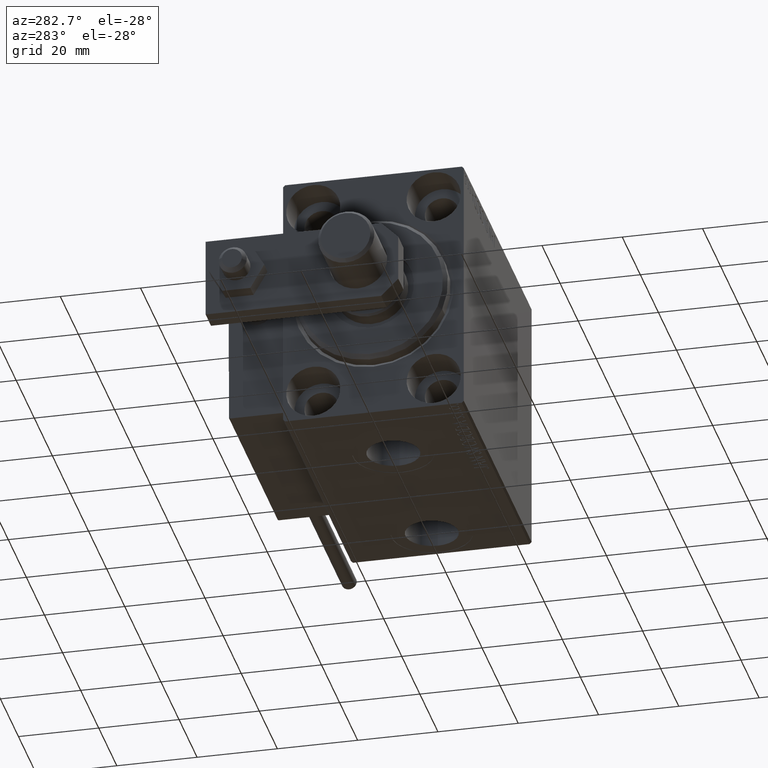
[diagram: clean part render]
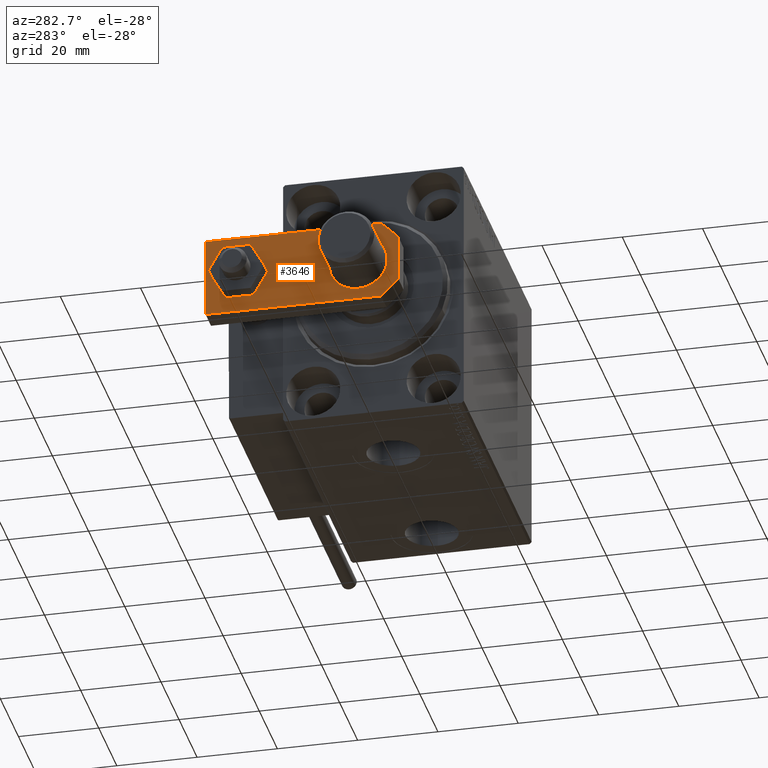
[diagram: same view with one face highlighted and labeled with its STEP entity id]
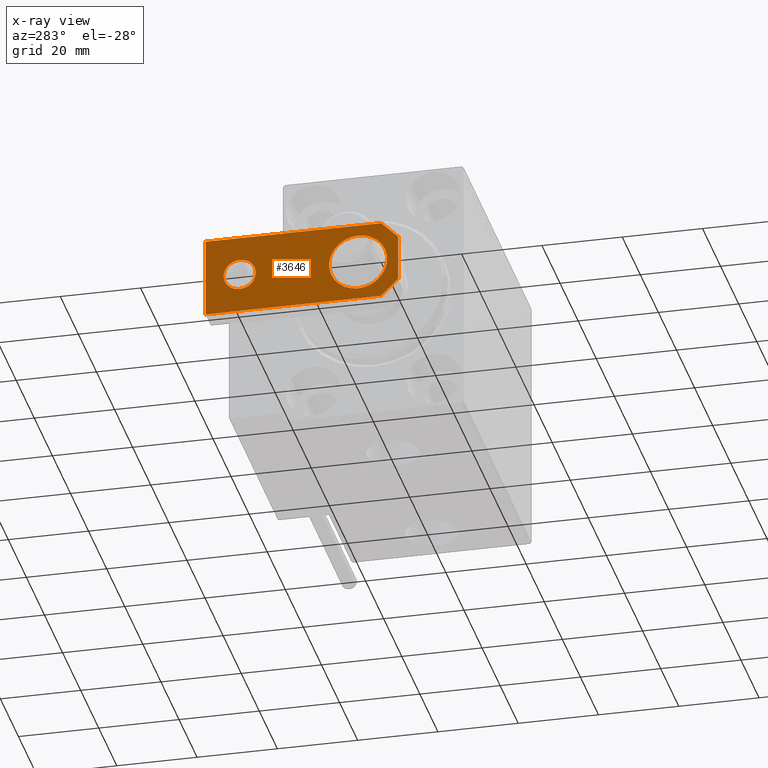
[diagram: x-ray of the same camera — body ghosted, the highlighted face saturated]
A machine part, auxiliary view. The second image highlights one B-rep face of the part: STEP entity #3646.
The next image is the same camera in x-ray: the body ghosted, the highlighted face saturated — about 0% of this face is hidden behind the body in this view.
In plain terms, the highlighted planar face has unit normal (-1, 0, 0).
Its self-contained STEP definition (entity closure, byte-faithful):
#160 = EDGE_LOOP ( 'NONE', ( #23156, #47067 ) ) ;
#1130 = VERTEX_POINT ( 'NONE', #17939 ) ;
#2448 = EDGE_LOOP ( 'NONE', ( #15724, #30619 ) ) ;
#2869 = VECTOR ( 'NONE', #26515, 1000.000000000000000 ) ;
#3646 = ADVANCED_FACE ( 'NONE', ( #39541, #13744, #12578 ), #43896, .T. ) ;
#3659 = LINE ( 'NONE', #42910, #3932 ) ;
#3932 = VECTOR ( 'NONE', #43437, 1000.000000000000114 ) ;
#4196 = AXIS2_PLACEMENT_3D ( 'NONE', #43686, #17467, #8751 ) ;
#4628 = LINE ( 'NONE', #8464, #22173 ) ;
#4676 = LINE ( 'NONE', #20330, #50796 ) ;
#5228 = VERTEX_POINT ( 'NONE', #34195 ) ;
#5476 = EDGE_CURVE ( 'NONE', #1130, #5228, #47669, .T. ) ;
#5525 = VECTOR ( 'NONE', #27244, 1000.000000000000000 ) ;
#5540 = VERTEX_POINT ( 'NONE', #13855 ) ;
#5913 = ORIENTED_EDGE ( 'NONE', *, *, #34539, .T. ) ;
#6648 = CIRCLE ( 'NONE', #23080, 7.250000000000000000 ) ;
#6995 = CARTESIAN_POINT ( 'NONE',  ( 4.000000000000000888, 39.50000000000000000, 6.000000000000000000 ) ) ;
#7072 = EDGE_CURVE ( 'NONE', #5228, #1130, #6648, .T. ) ;
#7566 = VERTEX_POINT ( 'NONE', #34101 ) ;
#7722 = LINE ( 'NONE', #19559, #5525 ) ;
#7761 = CARTESIAN_POINT ( 'NONE',  ( 10.00000000000000533, 0.000000000000000000, 6.000000000000000000 ) ) ;
#8359 = CIRCLE ( 'NONE', #14926, 4.000000000000000888 ) ;
#8458 = DIRECTION ( 'NONE',  ( -0.000000000000000000, 0.000000000000000000, 1.000000000000000000 ) ) ;
#8464 = CARTESIAN_POINT ( 'NONE',  ( -10.00000000000000000, 48.00000000000000000, 6.000000000000000000 ) ) ;
#8751 = DIRECTION ( 'NONE',  ( 1.000000000000000000, 0.000000000000000000, 0.000000000000000000 ) ) ;
#9768 = EDGE_CURVE ( 'NONE', #42803, #28152, #4676, .T. ) ;
#10203 = DIRECTION ( 'NONE',  ( 1.000000000000000000, 0.000000000000000000, 0.000000000000000000 ) ) ;
#10350 = CIRCLE ( 'NONE', #39059, 4.000000000000000888 ) ;
#12578 = FACE_BOUND ( 'NONE', #2448, .T. ) ;
#12585 = DIRECTION ( 'NONE',  ( -1.084202172485504434E-16, -1.000000000000000000, 0.000000000000000000 ) ) ;
#13744 = FACE_OUTER_BOUND ( 'NONE', #42839, .T. ) ;
#13806 = DIRECTION ( 'NONE',  ( 0.000000000000000000, 0.000000000000000000, 1.000000000000000000 ) ) ;
#13855 = CARTESIAN_POINT ( 'NONE',  ( -10.00000000000000000, 48.00000000000000000, 6.000000000000000000 ) ) ;
#13884 = EDGE_CURVE ( 'NONE', #5540, #42803, #4628, .T. ) ;
#14926 = AXIS2_PLACEMENT_3D ( 'NONE', #41269, #13806, #10203 ) ;
#15209 = DIRECTION ( 'NONE',  ( 0.7071067811865464625, -0.7071067811865486830, 0.000000000000000000 ) ) ;
#15604 = ORIENTED_EDGE ( 'NONE', *, *, #13884, .T. ) ;
#15724 = ORIENTED_EDGE ( 'NONE', *, *, #7072, .F. ) ;
#16818 = CARTESIAN_POINT ( 'NONE',  ( -4.000000000000000888, 39.50000000000000000, 6.000000000000000000 ) ) ;
#17467 = DIRECTION ( 'NONE',  ( 0.000000000000000000, 0.000000000000000000, 1.000000000000000000 ) ) ;
#17892 = EDGE_CURVE ( 'NONE', #43108, #27515, #8359, .T. ) ;
#17939 = CARTESIAN_POINT ( 'NONE',  ( 7.250000000000000000, 10.00000000000000355, 6.000000000000000000 ) ) ;
#19559 = CARTESIAN_POINT ( 'NONE',  ( 10.00000000000000178, 48.00000000000000000, 6.000000000000000000 ) ) ;
#20330 = CARTESIAN_POINT ( 'NONE',  ( -2.880000000000006999, -2.879999999999998561, 6.000000000000000000 ) ) ;
#22120 = AXIS2_PLACEMENT_3D ( 'NONE', #43641, #8458, #29155 ) ;
#22173 = VECTOR ( 'NONE', #12585, 1000.000000000000000 ) ;
#23080 = AXIS2_PLACEMENT_3D ( 'NONE', #47578, #31137, #28052 ) ;
#23156 = ORIENTED_EDGE ( 'NONE', *, *, #17892, .F. ) ;
#23356 = ORIENTED_EDGE ( 'NONE', *, *, #41699, .T. ) ;
#23416 = VERTEX_POINT ( 'NONE', #35328 ) ;
#25601 = ORIENTED_EDGE ( 'NONE', *, *, #27463, .T. ) ;
#26515 = DIRECTION ( 'NONE',  ( -7.228014483236695816E-17, 1.000000000000000000, 0.000000000000000000 ) ) ;
#26593 = CARTESIAN_POINT ( 'NONE',  ( -1.432611055310774642E-16, 39.50000000000000000, 6.000000000000000000 ) ) ;
#27244 = DIRECTION ( 'NONE',  ( -1.000000000000000000, 0.000000000000000000, 0.000000000000000000 ) ) ;
#27463 = EDGE_CURVE ( 'NONE', #37550, #23416, #38071, .T. ) ;
#27515 = VERTEX_POINT ( 'NONE', #6995 ) ;
#27622 = ORIENTED_EDGE ( 'NONE', *, *, #9768, .T. ) ;
#28052 = DIRECTION ( 'NONE',  ( 1.000000000000000000, 0.000000000000000000, 0.000000000000000000 ) ) ;
#28152 = VERTEX_POINT ( 'NONE', #34372 ) ;
#29155 = DIRECTION ( 'NONE',  ( 1.000000000000000000, 0.000000000000000000, 0.000000000000000000 ) ) ;
#30619 = ORIENTED_EDGE ( 'NONE', *, *, #5476, .F. ) ;
#31137 = DIRECTION ( 'NONE',  ( 0.000000000000000000, 0.000000000000000000, 1.000000000000000000 ) ) ;
#31393 = ORIENTED_EDGE ( 'NONE', *, *, #46894, .T. ) ;
#31408 = EDGE_CURVE ( 'NONE', #27515, #43108, #10350, .T. ) ;
#33023 = LINE ( 'NONE', #44091, #43888 ) ;
#34101 = CARTESIAN_POINT ( 'NONE',  ( 5.759999999999998010, 0.000000000000000000, 6.000000000000000000 ) ) ;
#34195 = CARTESIAN_POINT ( 'NONE',  ( -7.250000000000000000, 10.00000000000000178, 6.000000000000000000 ) ) ;
#34372 = CARTESIAN_POINT ( 'NONE',  ( -5.759999999999997122, 0.000000000000000000, 6.000000000000000000 ) ) ;
#34539 = EDGE_CURVE ( 'NONE', #7566, #37550, #3659, .T. ) ;
#35328 = CARTESIAN_POINT ( 'NONE',  ( 10.00000000000000178, 48.00000000000000000, 6.000000000000000000 ) ) ;
#37129 = DIRECTION ( 'NONE',  ( 1.000000000000000000, 0.000000000000000000, 0.000000000000000000 ) ) ;
#37550 = VERTEX_POINT ( 'NONE', #47414 ) ;
#38071 = LINE ( 'NONE', #7761, #2869 ) ;
#38391 = DIRECTION ( 'NONE',  ( 1.000000000000000000, 0.000000000000000000, 0.000000000000000000 ) ) ;
#39059 = AXIS2_PLACEMENT_3D ( 'NONE', #26593, #45343, #38391 ) ;
#39541 = FACE_BOUND ( 'NONE', #160, .T. ) ;
#41269 = CARTESIAN_POINT ( 'NONE',  ( -1.432611055310774642E-16, 39.50000000000000000, 6.000000000000000000 ) ) ;
#41699 = EDGE_CURVE ( 'NONE', #28152, #7566, #33023, .T. ) ;
#42803 = VERTEX_POINT ( 'NONE', #48219 ) ;
#42839 = EDGE_LOOP ( 'NONE', ( #15604, #27622, #23356, #5913, #25601, #31393 ) ) ;
#42910 = CARTESIAN_POINT ( 'NONE',  ( 2.879999999999984350, -2.879999999999999005, 6.000000000000000000 ) ) ;
#43108 = VERTEX_POINT ( 'NONE', #16818 ) ;
#43437 = DIRECTION ( 'NONE',  ( 0.7071067811865492381, 0.7071067811865457964, -0.000000000000000000 ) ) ;
#43641 = CARTESIAN_POINT ( 'NONE',  ( 0.000000000000000000, 0.000000000000000000, 6.000000000000000000 ) ) ;
#43686 = CARTESIAN_POINT ( 'NONE',  ( -9.629649721936179265E-32, 10.00000000000000178, 6.000000000000000000 ) ) ;
#43888 = VECTOR ( 'NONE', #37129, 1000.000000000000000 ) ;
#43896 = PLANE ( 'NONE',  #22120 ) ;
#44091 = CARTESIAN_POINT ( 'NONE',  ( -10.00000000000000533, 0.000000000000000000, 6.000000000000000000 ) ) ;
#45343 = DIRECTION ( 'NONE',  ( 0.000000000000000000, 0.000000000000000000, 1.000000000000000000 ) ) ;
#46894 = EDGE_CURVE ( 'NONE', #23416, #5540, #7722, .T. ) ;
#47067 = ORIENTED_EDGE ( 'NONE', *, *, #31408, .F. ) ;
#47414 = CARTESIAN_POINT ( 'NONE',  ( 10.00000000000000533, 4.239999999999986890, 6.000000000000000000 ) ) ;
#47578 = CARTESIAN_POINT ( 'NONE',  ( -9.629649721936179265E-32, 10.00000000000000178, 6.000000000000000000 ) ) ;
#47669 = CIRCLE ( 'NONE', #4196, 7.250000000000000000 ) ;
#48219 = CARTESIAN_POINT ( 'NONE',  ( -10.00000000000000533, 4.240000000000021529, 6.000000000000000000 ) ) ;
#50796 = VECTOR ( 'NONE', #15209, 999.9999999999998863 ) ;